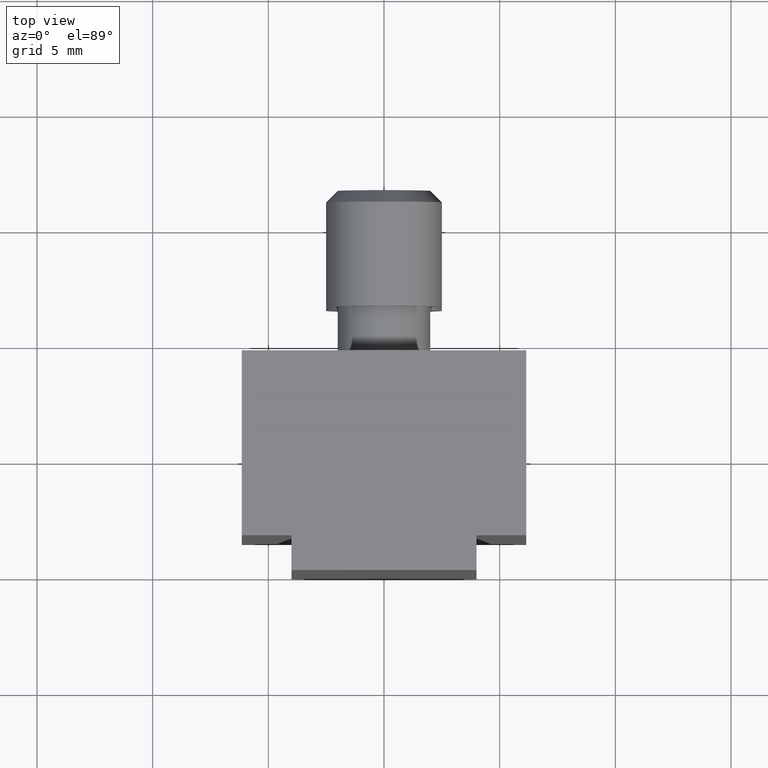
[diagram: clean part render]
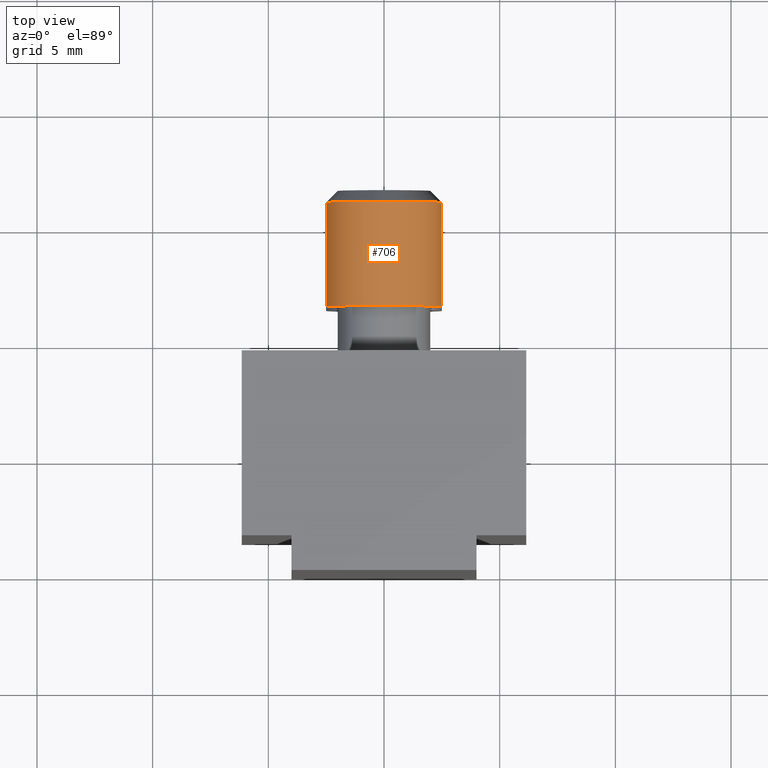
[diagram: same view with one face highlighted and labeled with its STEP entity id]
A machine part, top view. The second image highlights one B-rep face of the part: STEP entity #706.
In plain terms, the highlighted cylindrical surface (bore or boss wall) has radius 2.5 mm, axis along (-0, -1, 0).
Its self-contained STEP definition (entity closure, byte-faithful):
#110=FACE_OUTER_BOUND('',#162,.T.);
#162=EDGE_LOOP('',(#641,#642,#643,#644));
#224=LINE('',#1481,#269);
#269=VECTOR('',#1061,2.5);
#297=CIRCLE('',#843,2.5);
#304=CIRCLE('',#855,2.5);
#362=VERTEX_POINT('',#1455);
#369=VERTEX_POINT('',#1477);
#450=EDGE_CURVE('',#362,#362,#297,.T.);
#461=EDGE_CURVE('',#369,#369,#304,.T.);
#462=EDGE_CURVE('',#362,#369,#224,.T.);
#641=ORIENTED_EDGE('',*,*,#450,.T.);
#642=ORIENTED_EDGE('',*,*,#462,.T.);
#643=ORIENTED_EDGE('',*,*,#461,.F.);
#644=ORIENTED_EDGE('',*,*,#462,.F.);
#665=CYLINDRICAL_SURFACE('',#856,2.5);
#706=ADVANCED_FACE('',(#110),#665,.T.);
#843=AXIS2_PLACEMENT_3D('',#1456,#1029,#1030);
#855=AXIS2_PLACEMENT_3D('',#1479,#1057,#1058);
#856=AXIS2_PLACEMENT_3D('',#1480,#1059,#1060);
#1029=DIRECTION('center_axis',(0.,0.,1.));
#1030=DIRECTION('ref_axis',(-1.,0.,0.));
#1057=DIRECTION('center_axis',(0.,0.,1.));
#1058=DIRECTION('ref_axis',(-1.,0.,0.));
#1059=DIRECTION('center_axis',(0.,0.,-1.));
#1060=DIRECTION('ref_axis',(-1.,0.,0.));
#1061=DIRECTION('',(0.,0.,1.));
#1455=CARTESIAN_POINT('',(2.5,3.06161699786838E-16,9.9));
#1456=CARTESIAN_POINT('Origin',(0.,0.,9.9));
#1477=CARTESIAN_POINT('',(2.5,3.06151588455594E-16,14.4));
#1479=CARTESIAN_POINT('Origin',(0.,0.,14.4));
#1480=CARTESIAN_POINT('Origin',(0.,0.,14.9));
#1481=CARTESIAN_POINT('',(2.5,-3.06161699786838E-16,14.9));